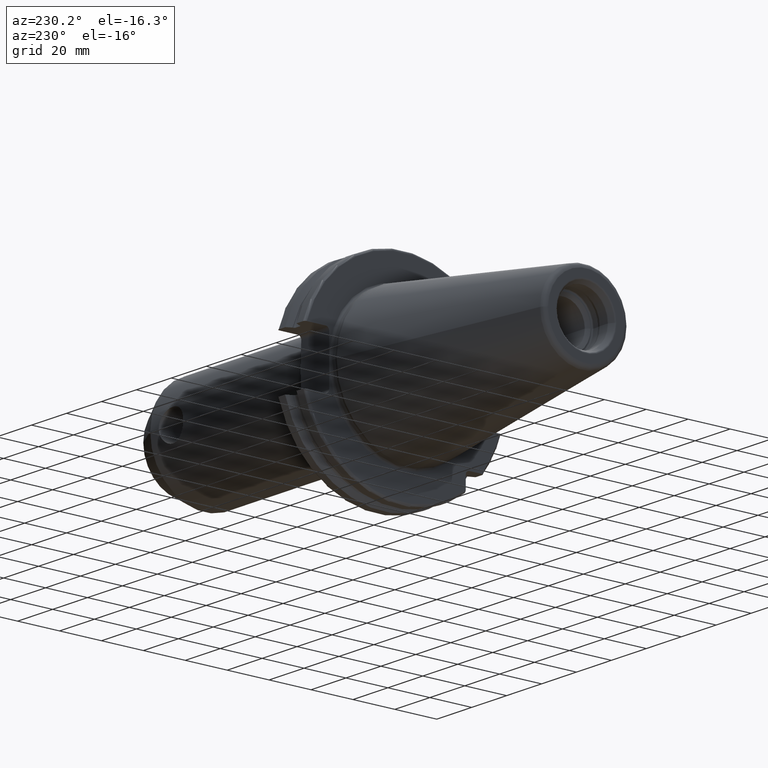
[diagram: clean part render]
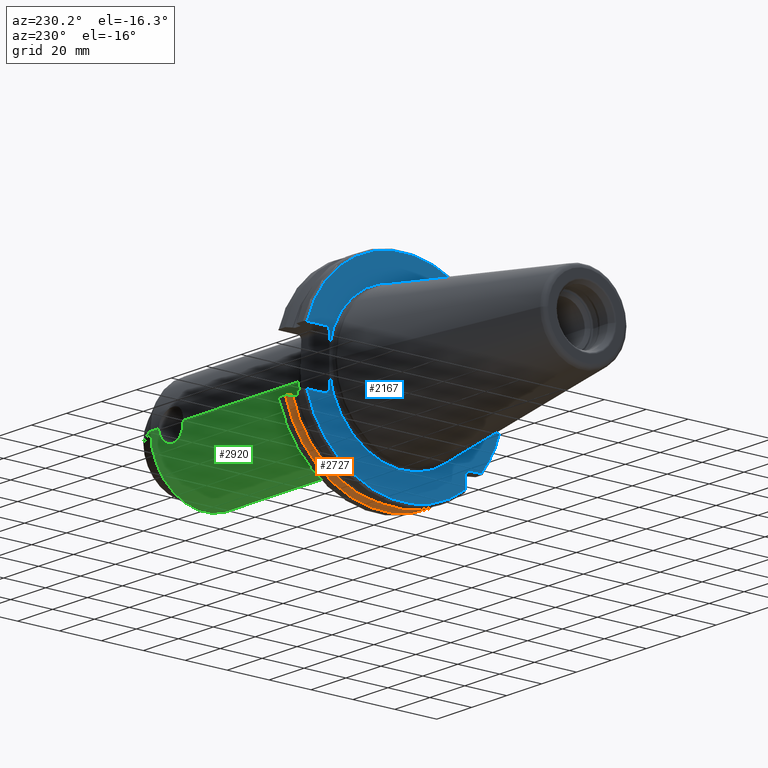
[diagram: same view with three faces highlighted in distinct colors, each labeled with its STEP entity id]
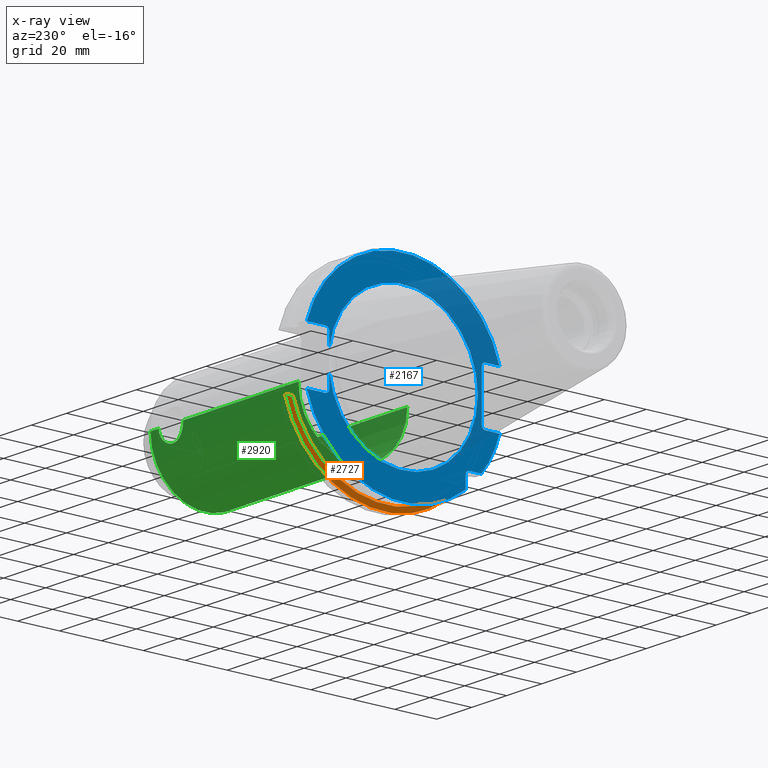
[diagram: x-ray of the same camera — body ghosted, the three highlighted faces saturated]
A machine part, auxiliary view with three faces highlighted in distinct colors.
The next image is the same camera in x-ray (body ghosted, the three faces saturated) — at least one of them is partly hidden behind the body in this view.
Their STEP definitions:

[orange] entity #2727 — the highlighted conical surface has half-angle 60 deg.
#517=CARTESIAN_POINT('',(1.441537838583E1,0.E0,0.E0));
#518=DIRECTION('',(1.E0,0.E0,0.E0));
#519=DIRECTION('',(0.E0,-6.124647345473E-1,-7.904979120376E-1));
#520=AXIS2_PLACEMENT_3D('',#517,#518,#519);
#960=CARTESIAN_POINT('',(1.30875E1,4.460981716077E1,-1.29E1));
#961=CARTESIAN_POINT('',(1.323171622645E1,4.486984125009E1,-1.29E1));
#962=CARTESIAN_POINT('',(1.352236645045E1,4.539353719098E1,-1.29E1));
#963=CARTESIAN_POINT('',(1.396495664446E1,4.618996220278E1,-1.29E1));
#964=CARTESIAN_POINT('',(1.426449561388E1,4.672829507383E1,-1.29E1));
#965=CARTESIAN_POINT('',(1.441537838583E1,4.699929686974E1,-1.29E1));
#967=CARTESIAN_POINT('',(1.30875E1,0.E0,0.E0));
#968=DIRECTION('',(-1.E0,0.E0,0.E0));
#969=DIRECTION('',(0.E0,9.606411165078E-1,-2.777924499957E-1));
#970=AXIS2_PLACEMENT_3D('',#967,#968,#969);
#972=CARTESIAN_POINT('',(1.30875E1,-2.985E1,-3.557278857662E1));
#973=CARTESIAN_POINT('',(1.322720354061E1,-2.985E1,-3.588866659244E1));
#974=CARTESIAN_POINT('',(1.351179500938E1,-2.985E1,-3.652866450573E1));
#975=CARTESIAN_POINT('',(1.395393296765E1,-2.985E1,-3.751242476101E1));
#976=CARTESIAN_POINT('',(1.425975326859E1,-2.985E1,-3.818590359837E1));
#977=CARTESIAN_POINT('',(1.441537838583E1,-2.985E1,-3.852689198793E1));
#1550=CARTESIAN_POINT('',(1.30875E1,4.460981716077E1,-1.29E1));
#1552=VERTEX_POINT('',#1550);
#1570=VERTEX_POINT('',#965);
#1611=CARTESIAN_POINT('',(1.30875E1,-2.985E1,-3.557278857662E1));
#1612=VERTEX_POINT('',#1611);
#1720=VERTEX_POINT('',#977);
#2716=CARTESIAN_POINT('',(1.375143919291E1,0.E0,0.E0));
#2717=DIRECTION('',(1.E0,0.E0,0.E0));
#2718=DIRECTION('',(0.E0,-1.E0,0.E0));
#2719=AXIS2_PLACEMENT_3D('',#2716,#2717,#2718);
#2720=CONICAL_SURFACE('',#2719,4.758752358474E1,6.E1);
#2721=ORIENTED_EDGE('',*,*,#2266,.F.);
#2722=ORIENTED_EDGE('',*,*,#2558,.T.);
#2723=ORIENTED_EDGE('',*,*,#2314,.T.);
#2724=ORIENTED_EDGE('',*,*,#2398,.T.);
#2725=EDGE_LOOP('',(#2721,#2722,#2723,#2724));
#2726=FACE_OUTER_BOUND('',#2725,.F.);
#2727=ADVANCED_FACE('',(#2726),#2720,.T.);
#521=CIRCLE('',#520,4.87375E1);
#966=B_SPLINE_CURVE_WITH_KNOTS('',3,(#960,#961,#962,#963,#964,#965),
.UNSPECIFIED.,.F.,.F.,(4,1,1,4),(0.E0,3.333333333333E-1,6.666666666667E-1,1.E0),
.UNSPECIFIED.);
#971=CIRCLE('',#970,4.643754716948E1);
#978=B_SPLINE_CURVE_WITH_KNOTS('',3,(#972,#973,#974,#975,#976,#977),
.UNSPECIFIED.,.F.,.F.,(4,1,1,4),(0.E0,3.333333333333E-1,6.666666666667E-1,1.E0),
.UNSPECIFIED.);
#2266=EDGE_CURVE('',#1552,#1570,#966,.T.);
#2314=EDGE_CURVE('',#1612,#1720,#978,.T.);
#2398=EDGE_CURVE('',#1720,#1570,#521,.T.);
#2558=EDGE_CURVE('',#1552,#1612,#971,.T.);

[blue] entity #2167 — the highlighted planar face has unit normal (1, 0, 0).
#105=CARTESIAN_POINT('',(3.2E0,3.53E1,-4.414818795828E0));
#117=CARTESIAN_POINT('',(3.2E0,0.E0,0.E0));
#118=DIRECTION('',(-1.E0,0.E0,0.E0));
#119=DIRECTION('',(0.E0,9.922698524245E-1,-1.240989120402E-1));
#120=AXIS2_PLACEMENT_3D('',#117,#118,#119);
#131=CARTESIAN_POINT('',(3.2E0,3.705E1,-1.115E1));
#132=DIRECTION('',(1.E0,0.E0,0.E0));
#133=DIRECTION('',(0.E0,-1.E0,0.E0));
#134=AXIS2_PLACEMENT_3D('',#131,#132,#133);
#257=CARTESIAN_POINT('',(3.2E0,3.705E1,1.115E1));
#258=DIRECTION('',(1.E0,0.E0,0.E0));
#259=DIRECTION('',(0.E0,0.E0,1.E0));
#260=AXIS2_PLACEMENT_3D('',#257,#258,#259);
#302=CARTESIAN_POINT('',(3.2E0,-3.925E1,1.115E1));
#303=DIRECTION('',(1.E0,0.E0,0.E0));
#304=DIRECTION('',(0.E0,1.E0,0.E0));
#305=AXIS2_PLACEMENT_3D('',#302,#303,#304);
#307=DIRECTION('',(0.E0,1.E0,0.E0));
#308=VECTOR('',#307,6.711493733886E0);
#309=CARTESIAN_POINT('',(3.2E0,-4.596149373389E1,1.29E1));
#310=LINE('',#309,#308);
#311=DIRECTION('',(0.E0,0.E0,1.E0));
#312=VECTOR('',#311,2.23E1);
#313=CARTESIAN_POINT('',(3.2E0,-3.75E1,-1.115E1));
#314=LINE('',#313,#312);
#315=DIRECTION('',(0.E0,1.E0,0.E0));
#316=VECTOR('',#315,6.711493733886E0);
#317=CARTESIAN_POINT('',(3.2E0,-4.596149373389E1,-1.29E1));
#318=LINE('',#317,#316);
#319=CARTESIAN_POINT('',(3.2E0,0.E0,0.E0));
#320=DIRECTION('',(-1.E0,0.E0,0.E0));
#321=DIRECTION('',(0.E0,-7.803888060170E-1,-6.252945797329E-1));
#322=AXIS2_PLACEMENT_3D('',#319,#320,#321);
#324=DIRECTION('',(0.E0,-1.E0,0.E0));
#325=VECTOR('',#324,5.653810627237E0);
#326=CARTESIAN_POINT('',(3.2E0,-3.16E1,-2.985E1));
#327=LINE('',#326,#325);
#328=DIRECTION('',(0.E0,0.E0,1.E0));
#329=VECTOR('',#328,5.653810627237E0);
#330=CARTESIAN_POINT('',(3.2E0,-2.985E1,-3.725381062724E1));
#331=LINE('',#330,#329);
#332=CARTESIAN_POINT('',(3.2E0,0.E0,0.E0));
#333=DIRECTION('',(-1.E0,0.E0,0.E0));
#334=DIRECTION('',(0.E0,9.627964123359E-1,-2.702278083268E-1));
#335=AXIS2_PLACEMENT_3D('',#332,#333,#334);
#337=DIRECTION('',(0.E0,-1.E0,0.E0));
#338=VECTOR('',#337,8.911493733886E0);
#339=CARTESIAN_POINT('',(3.2E0,4.596149373389E1,-1.29E1));
#340=LINE('',#339,#338);
#341=DIRECTION('',(0.E0,0.E0,-1.E0));
#342=VECTOR('',#341,6.735181204172E0);
#343=CARTESIAN_POINT('',(3.2E0,3.53E1,-4.414818795828E0));
#344=LINE('',#343,#342);
#345=DIRECTION('',(0.E0,0.E0,-1.E0));
#346=VECTOR('',#345,6.735181204172E0);
#347=CARTESIAN_POINT('',(3.2E0,3.53E1,1.115E1));
#348=LINE('',#347,#346);
#349=DIRECTION('',(0.E0,-1.E0,0.E0));
#350=VECTOR('',#349,8.911493733886E0);
#351=CARTESIAN_POINT('',(3.2E0,4.596149373389E1,1.29E1));
#352=LINE('',#351,#350);
#353=CARTESIAN_POINT('',(3.2E0,0.E0,0.E0));
#354=DIRECTION('',(1.E0,0.E0,0.E0));
#355=DIRECTION('',(0.E0,9.627964123359E-1,2.702278083268E-1));
#356=AXIS2_PLACEMENT_3D('',#353,#354,#355);
#363=CARTESIAN_POINT('',(3.2E0,-3.925E1,-1.115E1));
#364=DIRECTION('',(1.E0,0.E0,0.E0));
#365=DIRECTION('',(0.E0,0.E0,-1.E0));
#366=AXIS2_PLACEMENT_3D('',#363,#364,#365);
#429=CARTESIAN_POINT('',(3.2E0,4.596149373389E1,-1.29E1));
#464=CARTESIAN_POINT('',(3.2E0,-4.596149373389E1,-1.29E1));
#471=CARTESIAN_POINT('',(3.2E0,-3.725381062724E1,-2.985E1));
#491=CARTESIAN_POINT('',(3.2E0,-3.16E1,-3.16E1));
#492=DIRECTION('',(1.E0,0.E0,0.E0));
#493=DIRECTION('',(0.E0,1.E0,0.E0));
#494=AXIS2_PLACEMENT_3D('',#491,#492,#493);
#808=CARTESIAN_POINT('',(3.2E0,4.596149373389E1,1.29E1));
#815=CARTESIAN_POINT('',(3.2E0,-4.596149373389E1,1.29E1));
#998=CARTESIAN_POINT('',(3.2E0,3.53E1,4.414818795828E0));
#1009=CARTESIAN_POINT('',(3.2E0,0.E0,0.E0));
#1010=DIRECTION('',(1.E0,0.E0,0.E0));
#1011=DIRECTION('',(0.E0,9.922698524245E-1,1.240989120402E-1));
#1012=AXIS2_PLACEMENT_3D('',#1009,#1010,#1011);
#1464=CARTESIAN_POINT('',(3.2E0,-3.5575E1,0.E0));
#1466=VERTEX_POINT('',#1464);
#1590=VERTEX_POINT('',#998);
#1592=VERTEX_POINT('',#105);
#1595=VERTEX_POINT('',#808);
#1596=VERTEX_POINT('',#815);
#1599=VERTEX_POINT('',#429);
#1600=VERTEX_POINT('',#464);
#1623=CARTESIAN_POINT('',(3.2E0,-2.985E1,-3.725381062724E1));
#1624=VERTEX_POINT('',#1623);
#1626=CARTESIAN_POINT('',(3.2E0,-3.75E1,-1.115E1));
#1628=VERTEX_POINT('',#1626);
#1630=CARTESIAN_POINT('',(3.2E0,-3.925E1,-1.29E1));
#1632=VERTEX_POINT('',#1630);
#1634=CARTESIAN_POINT('',(3.2E0,-3.925E1,1.29E1));
#1636=VERTEX_POINT('',#1634);
#1638=CARTESIAN_POINT('',(3.2E0,-3.75E1,1.115E1));
#1640=VERTEX_POINT('',#1638);
#1642=CARTESIAN_POINT('',(3.2E0,3.705E1,1.29E1));
#1644=VERTEX_POINT('',#1642);
#1646=CARTESIAN_POINT('',(3.2E0,3.705E1,-1.29E1));
#1648=VERTEX_POINT('',#1646);
#1649=CARTESIAN_POINT('',(3.2E0,3.53E1,1.115E1));
#1650=VERTEX_POINT('',#1649);
#1651=CARTESIAN_POINT('',(3.2E0,3.53E1,-1.115E1));
#1652=VERTEX_POINT('',#1651);
#1657=CARTESIAN_POINT('',(3.2E0,-2.985E1,-3.16E1));
#1658=CARTESIAN_POINT('',(3.2E0,-3.16E1,-2.985E1));
#1659=VERTEX_POINT('',#1657);
#1660=VERTEX_POINT('',#1658);
#1727=VERTEX_POINT('',#471);
#2131=CARTESIAN_POINT('',(3.2E0,0.E0,0.E0));
#2132=DIRECTION('',(1.E0,0.E0,0.E0));
#2133=DIRECTION('',(0.E0,-1.E0,0.E0));
#2134=AXIS2_PLACEMENT_3D('',#2131,#2132,#2133);
#2135=PLANE('',#2134);
#2136=ORIENTED_EDGE('',*,*,#2091,.T.);
#2137=ORIENTED_EDGE('',*,*,#2126,.F.);
#2138=ORIENTED_EDGE('',*,*,#1997,.F.);
#2140=ORIENTED_EDGE('',*,*,#2139,.F.);
#2142=ORIENTED_EDGE('',*,*,#2141,.F.);
#2144=ORIENTED_EDGE('',*,*,#2143,.F.);
#2146=ORIENTED_EDGE('',*,*,#2145,.F.);
#2148=ORIENTED_EDGE('',*,*,#2147,.F.);
#2150=ORIENTED_EDGE('',*,*,#2149,.F.);
#2152=ORIENTED_EDGE('',*,*,#2151,.F.);
#2154=ORIENTED_EDGE('',*,*,#2153,.T.);
#2155=ORIENTED_EDGE('',*,*,#1908,.F.);
#2156=ORIENTED_EDGE('',*,*,#1893,.F.);
#2157=ORIENTED_EDGE('',*,*,#1870,.T.);
#2159=ORIENTED_EDGE('',*,*,#2158,.F.);
#2160=ORIENTED_EDGE('',*,*,#1888,.F.);
#2161=ORIENTED_EDGE('',*,*,#2031,.F.);
#2162=ORIENTED_EDGE('',*,*,#2065,.F.);
#2164=ORIENTED_EDGE('',*,*,#2163,.T.);
#2165=EDGE_LOOP('',(#2136,#2137,#2138,#2140,#2142,#2144,#2146,#2148,#2150,#2152,
#2154,#2155,#2156,#2157,#2159,#2160,#2161,#2162,#2164));
#2166=FACE_OUTER_BOUND('',#2165,.F.);
#2167=ADVANCED_FACE('',(#2166),#2135,.F.);
#121=CIRCLE('',#120,3.5575E1);
#135=CIRCLE('',#134,1.75E0);
#261=CIRCLE('',#260,1.75E0);
#306=CIRCLE('',#305,1.75E0);
#323=CIRCLE('',#322,4.77375E1);
#336=CIRCLE('',#335,4.77375E1);
#357=CIRCLE('',#356,4.77375E1);
#367=CIRCLE('',#366,1.75E0);
#495=CIRCLE('',#494,1.75E0);
#1013=CIRCLE('',#1012,3.5575E1);
#1870=EDGE_CURVE('',#1592,#1466,#121,.T.);
#1888=EDGE_CURVE('',#1650,#1590,#348,.T.);
#1893=EDGE_CURVE('',#1592,#1652,#344,.T.);
#1908=EDGE_CURVE('',#1652,#1648,#135,.T.);
#1997=EDGE_CURVE('',#1628,#1640,#314,.T.);
#2031=EDGE_CURVE('',#1644,#1650,#261,.T.);
#2065=EDGE_CURVE('',#1595,#1644,#352,.T.);
#2091=EDGE_CURVE('',#1596,#1636,#310,.T.);
#2126=EDGE_CURVE('',#1640,#1636,#306,.T.);
#2139=EDGE_CURVE('',#1632,#1628,#367,.T.);
#2141=EDGE_CURVE('',#1600,#1632,#318,.T.);
#2143=EDGE_CURVE('',#1727,#1600,#323,.T.);
#2145=EDGE_CURVE('',#1660,#1727,#327,.T.);
#2147=EDGE_CURVE('',#1659,#1660,#495,.T.);
#2149=EDGE_CURVE('',#1624,#1659,#331,.T.);
#2151=EDGE_CURVE('',#1599,#1624,#336,.T.);
#2153=EDGE_CURVE('',#1599,#1648,#340,.T.);
#2158=EDGE_CURVE('',#1590,#1466,#1013,.T.);
#2163=EDGE_CURVE('',#1595,#1596,#357,.T.);

[green] entity #2920 — the highlighted cylindrical surface (partial cylindrical patch) has radius 26 mm, axis along (1, 0, 0).
#1179=CARTESIAN_POINT('',(9.8E1,2.6E1,0.E0));
#1180=CARTESIAN_POINT('',(9.8E1,2.6E1,-3.506990321769E-1));
#1181=CARTESIAN_POINT('',(9.805203921742E1,2.598591549011E1,-1.042631595414E0));
#1182=CARTESIAN_POINT('',(9.828345518122E1,2.592458892366E1,-2.061165229743E0));
#1183=CARTESIAN_POINT('',(9.865998269450E1,2.582893196390E1,-3.027074966393E0));
#1184=CARTESIAN_POINT('',(9.917746864352E1,2.570594881578E1,-3.931771828060E0));
#1185=CARTESIAN_POINT('',(9.982259652264E1,2.556648452391E1,-4.749767752801E0));
#1186=CARTESIAN_POINT('',(1.005920009315E2,2.542072220467E1,-5.471753319626E0));
#1187=CARTESIAN_POINT('',(1.014618165291E2,2.528323019402E1,-6.071090473102E0));
#1188=CARTESIAN_POINT('',(1.024221528717E2,2.516596540197E1,-6.536589732518E0));
#1189=CARTESIAN_POINT('',(1.034218984425E2,2.508274998739E1,-6.846432752818E0));
#1190=CARTESIAN_POINT('',(1.044570436063E2,2.503869635765E1,-7.004620917814E0));
#1191=CARTESIAN_POINT('',(1.054912390832E2,2.503760905972E1,-7.008475511601E0));
#1192=CARTESIAN_POINT('',(1.065284123126E2,2.507964304385E1,-6.857718723374E0));
#1193=CARTESIAN_POINT('',(1.075297651375E2,2.516106659398E1,-6.555260288996E0));
#1194=CARTESIAN_POINT('',(1.084920301419E2,2.527676790066E1,-6.097705616867E0));
#1195=CARTESIAN_POINT('',(1.093680491826E2,2.541372373398E1,-5.504058001429E0));
#1196=CARTESIAN_POINT('',(1.101487049072E2,2.556058354373E1,-4.781575656359E0));
#1197=CARTESIAN_POINT('',(1.108041145121E2,2.570171744932E1,-3.959720470957E0));
#1198=CARTESIAN_POINT('',(1.113297257954E2,2.582637048295E1,-3.049453624594E0));
#1199=CARTESIAN_POINT('',(1.117118558145E2,2.592335813863E1,-2.077660303053E0));
#1200=CARTESIAN_POINT('',(1.119470397636E2,2.598566480275E1,-1.051571924409E0));
#1201=CARTESIAN_POINT('',(1.12E2,2.6E1,-3.538227040733E-1));
#1202=CARTESIAN_POINT('',(1.12E2,2.6E1,0.E0));
#1204=DIRECTION('',(-9.999999996975E-1,-1.534497572769E-9,2.459587995682E-5));
#1205=VECTOR('',#1204,6.595000001995E1);
#1206=CARTESIAN_POINT('',(9.8E1,2.6E1,0.E0));
#1207=LINE('',#1206,#1205);
#1208=CARTESIAN_POINT('',(3.205E1,0.E0,0.E0));
#1209=DIRECTION('',(1.E0,0.E0,0.E0));
#1210=DIRECTION('',(0.E0,-1.E0,0.E0));
#1211=AXIS2_PLACEMENT_3D('',#1208,#1209,#1210);
#1213=DIRECTION('',(-9.999999998165E-1,1.195059802769E-9,-1.915516067191E-5));
#1214=VECTOR('',#1213,8.468205082310E1);
#1215=CARTESIAN_POINT('',(1.167320508076E2,-2.6E1,5.897384408454E-12));
#1216=LINE('',#1215,#1214);
#1217=CARTESIAN_POINT('',(1.167320508076E2,0.E0,0.E0));
#1218=DIRECTION('',(-1.E0,0.E0,0.E0));
#1219=DIRECTION('',(0.E0,1.E0,0.E0));
#1220=AXIS2_PLACEMENT_3D('',#1217,#1218,#1219);
#1222=DIRECTION('',(-1.E0,0.E0,1.246769621561E-12));
#1223=VECTOR('',#1222,4.732050807569E0);
#1224=CARTESIAN_POINT('',(1.167320508076E2,2.6E1,-5.898181684277E-12));
#1225=LINE('',#1224,#1223);
#1668=CARTESIAN_POINT('',(1.12E2,2.6E1,0.E0));
#1670=VERTEX_POINT('',#1668);
#1672=CARTESIAN_POINT('',(9.8E1,2.6E1,0.E0));
#1674=VERTEX_POINT('',#1672);
#1681=CARTESIAN_POINT('',(3.205E1,-2.6E1,0.E0));
#1682=CARTESIAN_POINT('',(3.205E1,2.6E1,0.E0));
#1683=VERTEX_POINT('',#1681);
#1684=VERTEX_POINT('',#1682);
#1689=CARTESIAN_POINT('',(1.167320508076E2,2.6E1,0.E0));
#1690=CARTESIAN_POINT('',(1.167320508076E2,-2.6E1,0.E0));
#1691=VERTEX_POINT('',#1689);
#1692=VERTEX_POINT('',#1690);
#2907=CARTESIAN_POINT('',(1.35025E1,0.E0,0.E0));
#2908=DIRECTION('',(1.E0,0.E0,0.E0));
#2909=DIRECTION('',(0.E0,-1.E0,0.E0));
#2910=AXIS2_PLACEMENT_3D('',#2907,#2908,#2909);
#2911=CYLINDRICAL_SURFACE('',#2910,2.6E1);
#2912=ORIENTED_EDGE('',*,*,#2796,.F.);
#2913=ORIENTED_EDGE('',*,*,#2767,.T.);
#2914=ORIENTED_EDGE('',*,*,#1976,.F.);
#2915=ORIENTED_EDGE('',*,*,#2764,.F.);
#2916=ORIENTED_EDGE('',*,*,#2897,.F.);
#2917=ORIENTED_EDGE('',*,*,#2760,.T.);
#2918=EDGE_LOOP('',(#2912,#2913,#2914,#2915,#2916,#2917));
#2919=FACE_OUTER_BOUND('',#2918,.F.);
#2920=ADVANCED_FACE('',(#2919),#2911,.T.);
#1203=B_SPLINE_CURVE_WITH_KNOTS('',3,(#1179,#1180,#1181,#1182,#1183,#1184,#1185,
#1186,#1187,#1188,#1189,#1190,#1191,#1192,#1193,#1194,#1195,#1196,#1197,#1198,
#1199,#1200,#1201,#1202),.UNSPECIFIED.,.F.,.F.,(4,1,1,1,1,1,1,1,1,1,1,1,1,1,1,1,
1,1,1,1,1,4),(0.E0,4.761904761905E-2,9.523809523810E-2,1.428571428571E-1,
1.904761904762E-1,2.380952380952E-1,2.857142857143E-1,3.333333333333E-1,
3.809523809524E-1,4.285714285714E-1,4.761904761905E-1,5.238095238095E-1,
5.714285714286E-1,6.190476190476E-1,6.666666666667E-1,7.142857142857E-1,
7.619047619048E-1,8.095238095238E-1,8.571428571429E-1,9.047619047619E-1,
9.523809523810E-1,1.E0),.UNSPECIFIED.);
#1212=CIRCLE('',#1211,2.6E1);
#1221=CIRCLE('',#1220,2.6E1);
#1976=EDGE_CURVE('',#1683,#1684,#1212,.T.);
#2760=EDGE_CURVE('',#1691,#1670,#1225,.T.);
#2764=EDGE_CURVE('',#1692,#1683,#1216,.T.);
#2767=EDGE_CURVE('',#1674,#1684,#1207,.T.);
#2796=EDGE_CURVE('',#1674,#1670,#1203,.T.);
#2897=EDGE_CURVE('',#1691,#1692,#1221,.T.);